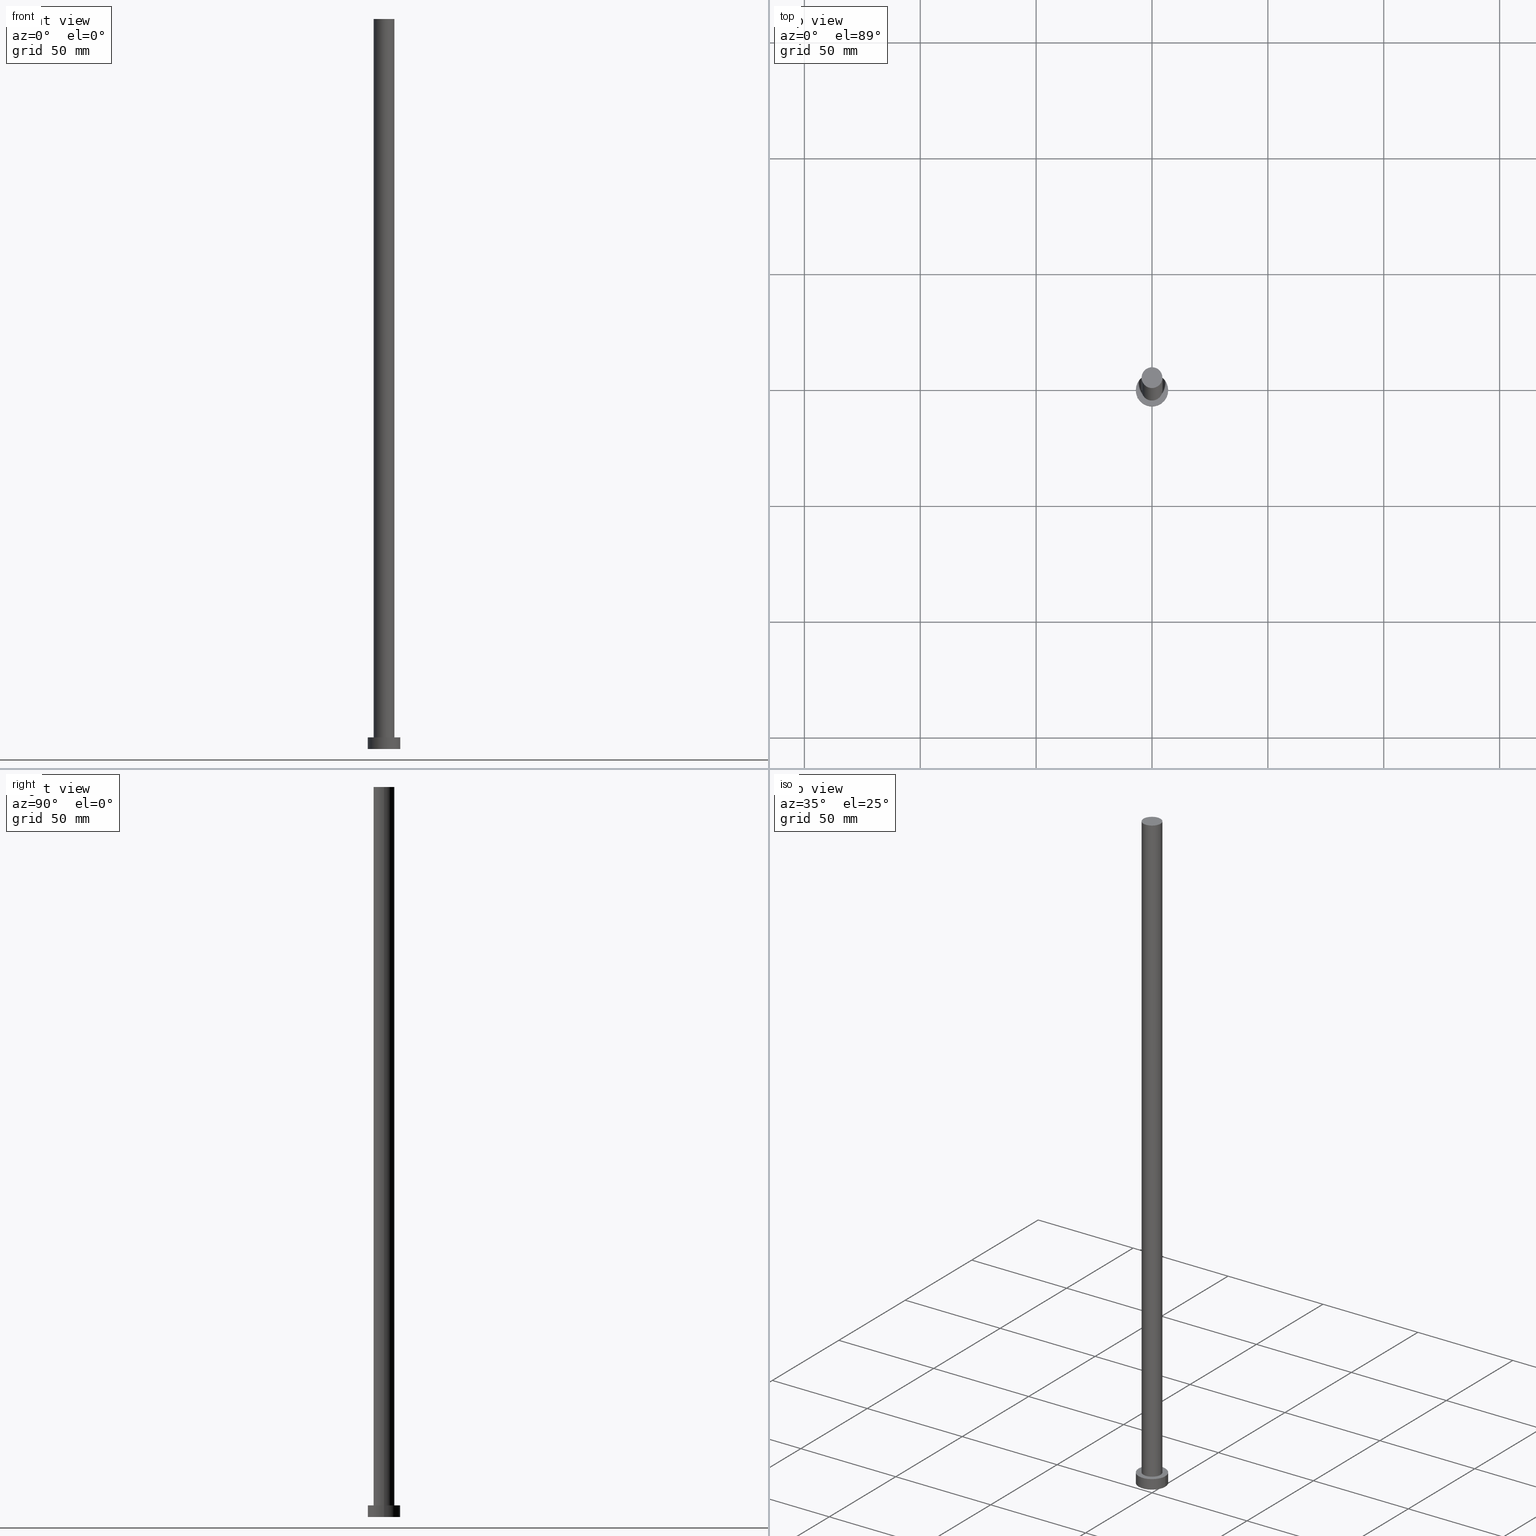
[diagram: canonical four-view strip — front | top / right | iso, engineering-drawing reading convention]
A machine part, canonical four-view strip (front | top / right | iso — engineering-drawing reading convention). The complete STEP part file that produces these views, byte-faithful:
ISO-10303-21;
HEADER;
FILE_DESCRIPTION (( 'STEP AP203' ),
    '1' );
FILE_NAME ('26ab.STEP',
    '2023-02-12T11:08:16',
    ( '' ),
    ( '' ),
    'SwSTEP 2.0',
    'SolidWorks 2019',
    '' );
FILE_SCHEMA (( 'CONFIG_CONTROL_DESIGN' ));
ENDSEC;

DATA;
#1 = AXIS2_PLACEMENT_3D ( 'NONE', #72, #56, #134 ) ;
#2 = EDGE_LOOP ( 'NONE', ( #219, #76 ) ) ;
#3 = EDGE_LOOP ( 'NONE', ( #8, #35 ) ) ;
#4 = VECTOR ( 'NONE', #164, 1000.000000000000000 ) ;
#5 = AXIS2_PLACEMENT_3D ( 'NONE', #135, #55, #80 ) ;
#6 = PERSON_AND_ORGANIZATION ( #190, #16 ) ;
#7 = APPROVAL_STATUS ( 'not_yet_approved' ) ;
#8 = ORIENTED_EDGE ( 'NONE', *, *, #213, .T. ) ;
#9 = VECTOR ( 'NONE', #189, 1000.000000000000000 ) ;
#10 = EDGE_CURVE ( 'NONE', #167, #238, #174, .T. ) ;
#11 = DIRECTION ( 'NONE',  ( 0.000000000000000000, 0.000000000000000000, 1.000000000000000000 ) ) ;
#12 = ADVANCED_FACE ( 'NONE', ( #252 ), #92, .T. ) ;
#13 = LINE ( 'NONE', #184, #204 ) ;
#14 = DIRECTION ( 'NONE',  ( -1.000000000000000000, 0.000000000000000000, 0.000000000000000000 ) ) ;
#15 = DIRECTION ( 'NONE',  ( 0.000000000000000000, 0.000000000000000000, 1.000000000000000000 ) ) ;
#16 = ORGANIZATION ( 'NEUR�EN�', 'NEUR�EN�', '' ) ;
#17 = DIRECTION ( 'NONE',  ( -1.000000000000000000, 0.000000000000000000, 0.000000000000000000 ) ) ;
#18 = CARTESIAN_POINT ( 'NONE',  ( -4.500000000000000000, 0.000000000000000000, 5.000000000000000000 ) ) ;
#19 = CIRCLE ( 'NONE', #244, 4.500000000000000000 ) ;
#20 = ORIENTED_EDGE ( 'NONE', *, *, #53, .T. ) ;
#21 = AXIS2_PLACEMENT_3D ( 'NONE', #136, #100, #17 ) ;
#22 = ORIENTED_EDGE ( 'NONE', *, *, #53, .F. ) ;
#23 = CARTESIAN_POINT ( 'NONE',  ( -7.000000000000000000, 0.000000000000000000, 5.000000000000000000 ) ) ;
#24 = PERSON_AND_ORGANIZATION ( #190, #16 ) ;
#25 = ORIENTED_EDGE ( 'NONE', *, *, #79, .F. ) ;
#26 = PERSON_AND_ORGANIZATION_ROLE ( 'classification_officer' ) ;
#27 = FACE_OUTER_BOUND ( 'NONE', #111, .T. ) ;
#28 = APPROVAL_DATE_TIME ( #203, #104 ) ;
#29 = EDGE_CURVE ( 'NONE', #216, #67, #105, .T. ) ;
#30 = APPROVAL_ROLE ( '' ) ;
#31 = CIRCLE ( 'NONE', #103, 4.500000000000000000 ) ;
#32 = CARTESIAN_POINT ( 'NONE',  ( -4.500000000000000000, 0.000000000000000000, 315.0000000000000000 ) ) ;
#33 = CC_DESIGN_PERSON_AND_ORGANIZATION_ASSIGNMENT ( #240, #161, ( #121 ) ) ;
#34 = LOCAL_TIME ( 12, 8, 16.00000000000000000, #246 ) ;
#35 = ORIENTED_EDGE ( 'NONE', *, *, #29, .T. ) ;
#36 = DIRECTION ( 'NONE',  ( 0.000000000000000000, 0.000000000000000000, 1.000000000000000000 ) ) ;
#37 = CARTESIAN_POINT ( 'NONE',  ( 0.000000000000000000, 0.000000000000000000, 5.000000000000000000 ) ) ;
#38 = EDGE_CURVE ( 'NONE', #119, #198, #59, .T. ) ;
#39 =( NAMED_UNIT ( * ) SI_UNIT ( $, .STERADIAN. ) SOLID_ANGLE_UNIT ( ) );
#40 = ORIENTED_EDGE ( 'NONE', *, *, #38, .F. ) ;
#41 = APPROVAL_PERSON_ORGANIZATION ( #6, #237, #30 ) ;
#42 = DIRECTION ( 'NONE',  ( 1.000000000000000000, 0.000000000000000000, -0.000000000000000000 ) ) ;
#43 = DATE_AND_TIME ( #176, #217 ) ;
#44 = APPROVAL ( #99, 'NEUR�EN�' ) ;
#45 = MANIFOLD_SOLID_BREP ( 'P�idat vysunut�m3', #129 ) ;
#46 = DIRECTION ( 'NONE',  ( -1.000000000000000000, 0.000000000000000000, 0.000000000000000000 ) ) ;
#47 = ADVANCED_FACE ( 'NONE', ( #109, #207 ), #152, .T. ) ;
#48 = COORDINATED_UNIVERSAL_TIME_OFFSET ( 1, 0, .AHEAD. ) ;
#49 = CARTESIAN_POINT ( 'NONE',  ( 0.000000000000000000, 0.000000000000000000, 315.0000000000000000 ) ) ;
#50 = DIRECTION ( 'NONE',  ( 1.000000000000000000, 0.000000000000000000, 0.000000000000000000 ) ) ;
#51 =( GEOMETRIC_REPRESENTATION_CONTEXT ( 3 ) GLOBAL_UNCERTAINTY_ASSIGNED_CONTEXT ( ( #133 ) ) GLOBAL_UNIT_ASSIGNED_CONTEXT ( ( #235, #118, #39 ) ) REPRESENTATION_CONTEXT ( 'NONE', 'WORKASPACE' ) );
#52 = FACE_OUTER_BOUND ( 'NONE', #166, .T. ) ;
#53 = EDGE_CURVE ( 'NONE', #216, #119, #13, .T. ) ;
#54 = DIRECTION ( 'NONE',  ( 0.000000000000000000, 0.000000000000000000, 1.000000000000000000 ) ) ;
#55 = DIRECTION ( 'NONE',  ( 0.000000000000000000, 0.000000000000000000, 1.000000000000000000 ) ) ;
#56 = DIRECTION ( 'NONE',  ( -0.000000000000000000, -0.000000000000000000, -1.000000000000000000 ) ) ;
#57 = PRODUCT_RELATED_PRODUCT_CATEGORY ( 'detail', '', ( #107 ) ) ;
#58 = DIRECTION ( 'NONE',  ( 0.000000000000000000, 0.000000000000000000, 1.000000000000000000 ) ) ;
#59 = CIRCLE ( 'NONE', #126, 4.500000000000000000 ) ;
#60 = ORIENTED_EDGE ( 'NONE', *, *, #165, .F. ) ;
#61 = PLANE ( 'NONE',  #162 ) ;
#62 = ORIENTED_EDGE ( 'NONE', *, *, #142, .T. ) ;
#63 = PERSON_AND_ORGANIZATION ( #190, #16 ) ;
#64 = ORIENTED_EDGE ( 'NONE', *, *, #110, .T. ) ;
#65 = APPROVAL_PERSON_ORGANIZATION ( #201, #104, #247 ) ;
#66 = CALENDAR_DATE ( 2023, 12, 2 ) ;
#67 = VERTEX_POINT ( 'NONE', #32 ) ;
#68 = CARTESIAN_POINT ( 'NONE',  ( 0.000000000000000000, 0.000000000000000000, 5.000000000000000000 ) ) ;
#69 = CARTESIAN_POINT ( 'NONE',  ( 0.000000000000000000, 0.000000000000000000, 5.000000000000000000 ) ) ;
#70 = CARTESIAN_POINT ( 'NONE',  ( 0.000000000000000000, 0.000000000000000000, 0.000000000000000000 ) ) ;
#71 = VERTEX_POINT ( 'NONE', #93 ) ;
#72 = CARTESIAN_POINT ( 'NONE',  ( 0.000000000000000000, 0.000000000000000000, 5.000000000000000000 ) ) ;
#73 = ADVANCED_FACE ( 'NONE', ( #52 ), #94, .T. ) ;
#74 = DIRECTION ( 'NONE',  ( 0.000000000000000000, 0.000000000000000000, 1.000000000000000000 ) ) ;
#75 = CARTESIAN_POINT ( 'NONE',  ( -7.000000000000000000, 0.000000000000000000, 5.000000000000000000 ) ) ;
#76 = ORIENTED_EDGE ( 'NONE', *, *, #110, .F. ) ;
#77 = LINE ( 'NONE', #218, #239 ) ;
#78 = EDGE_LOOP ( 'NONE', ( #117, #20, #149, #25 ) ) ;
#79 = EDGE_CURVE ( 'NONE', #67, #198, #209, .T. ) ;
#80 = DIRECTION ( 'NONE',  ( 1.000000000000000000, 0.000000000000000000, 0.000000000000000000 ) ) ;
#81 = SECURITY_CLASSIFICATION_LEVEL ( 'unclassified' ) ;
#82 = PERSON_AND_ORGANIZATION_ROLE ( 'creator' ) ;
#83 = PRODUCT_DEFINITION_SHAPE ( 'NONE', 'NONE',  #121 ) ;
#84 = DATE_AND_TIME ( #125, #222 ) ;
#85 = LOCAL_TIME ( 12, 8, 16.00000000000000000, #146 ) ;
#86 = DATE_AND_TIME ( #144, #170 ) ;
#87 = AXIS2_PLACEMENT_3D ( 'NONE', #70, #54, #124 ) ;
#88 = CARTESIAN_POINT ( 'NONE',  ( 0.000000000000000000, 0.000000000000000000, 315.0000000000000000 ) ) ;
#89 = APPROVAL_PERSON_ORGANIZATION ( #193, #44, #172 ) ;
#90 = DIRECTION ( 'NONE',  ( 1.000000000000000000, 0.000000000000000000, 0.000000000000000000 ) ) ;
#91 = CC_DESIGN_DATE_AND_TIME_ASSIGNMENT ( #86, #123, ( #120 ) ) ;
#92 = CYLINDRICAL_SURFACE ( 'NONE', #196, 4.500000000000000000 ) ;
#93 = CARTESIAN_POINT ( 'NONE',  ( -7.000000000000000000, 0.000000000000000000, 0.000000000000000000 ) ) ;
#94 = CYLINDRICAL_SURFACE ( 'NONE', #148, 4.500000000000000000 ) ;
#95 = DIRECTION ( 'NONE',  ( -0.000000000000000000, -0.000000000000000000, -1.000000000000000000 ) ) ;
#96 = CARTESIAN_POINT ( 'NONE',  ( 0.000000000000000000, 0.000000000000000000, 315.0000000000000000 ) ) ;
#97 = DIRECTION ( 'NONE',  ( 1.000000000000000000, 0.000000000000000000, 0.000000000000000000 ) ) ;
#98 = VERTEX_POINT ( 'NONE', #183 ) ;
#99 = APPROVAL_STATUS ( 'not_yet_approved' ) ;
#100 = DIRECTION ( 'NONE',  ( -0.000000000000000000, -0.000000000000000000, -1.000000000000000000 ) ) ;
#101 = CIRCLE ( 'NONE', #87, 7.000000000000000000 ) ;
#102 = PERSON_AND_ORGANIZATION_ROLE ( 'design_supplier' ) ;
#103 = AXIS2_PLACEMENT_3D ( 'NONE', #212, #211, #215 ) ;
#104 = APPROVAL ( #178, 'NEUR�EN�' ) ;
#105 = CIRCLE ( 'NONE', #186, 4.500000000000000000 ) ;
#106 = CYLINDRICAL_SURFACE ( 'NONE', #1, 7.000000000000000000 ) ;
#107 = PRODUCT ( '26ab', '26ab', '', ( #155 ) ) ;
#108 = PERSON_AND_ORGANIZATION ( #190, #16 ) ;
#109 = FACE_BOUND ( 'NONE', #251, .T. ) ;
#110 = EDGE_CURVE ( 'NONE', #98, #71, #101, .T. ) ;
#111 = EDGE_LOOP ( 'NONE', ( #175, #173, #245, #177 ) ) ;
#112 = DIRECTION ( 'NONE',  ( 1.000000000000000000, 0.000000000000000000, 0.000000000000000000 ) ) ;
#113 = ORIENTED_EDGE ( 'NONE', *, *, #165, .T. ) ;
#114 = CARTESIAN_POINT ( 'NONE',  ( 4.500000000000000000, 5.510910596163088569E-16, 315.0000000000000000 ) ) ;
#115 = CARTESIAN_POINT ( 'NONE',  ( 0.000000000000000000, 0.000000000000000000, 0.000000000000000000 ) ) ;
#116 = APPLICATION_PROTOCOL_DEFINITION ( 'international standard', 'config_control_design', 1994, #128 ) ;
#117 = ORIENTED_EDGE ( 'NONE', *, *, #29, .F. ) ;
#118 =( NAMED_UNIT ( * ) PLANE_ANGLE_UNIT ( ) SI_UNIT ( $, .RADIAN. ) );
#119 = VERTEX_POINT ( 'NONE', #132 ) ;
#120 = SECURITY_CLASSIFICATION ( '', '', #81 ) ;
#121 = PRODUCT_DEFINITION ( 'NEZN�M�', '', #192, #122 ) ;
#122 = DESIGN_CONTEXT ( 'detailed design', #128, 'design' ) ;
#123 = DATE_TIME_ROLE ( 'classification_date' ) ;
#124 = DIRECTION ( 'NONE',  ( 1.000000000000000000, 0.000000000000000000, 0.000000000000000000 ) ) ;
#125 = CALENDAR_DATE ( 2023, 12, 2 ) ;
#126 = AXIS2_PLACEMENT_3D ( 'NONE', #69, #150, #112 ) ;
#127 = CC_DESIGN_PERSON_AND_ORGANIZATION_ASSIGNMENT ( #63, #26, ( #120 ) ) ;
#128 = APPLICATION_CONTEXT ( 'configuration controlled 3d designs of mechanical parts and assemblies' ) ;
#129 = CLOSED_SHELL ( 'NONE', ( #12, #228, #179, #47, #205, #73, #248 ) ) ;
#130 = EDGE_LOOP ( 'NONE', ( #62, #171 ) ) ;
#131 = DIRECTION ( 'NONE',  ( -0.000000000000000000, -0.000000000000000000, -1.000000000000000000 ) ) ;
#132 = CARTESIAN_POINT ( 'NONE',  ( 4.500000000000000000, 5.510910596163088569E-16, 5.000000000000000000 ) ) ;
#133 = UNCERTAINTY_MEASURE_WITH_UNIT (LENGTH_MEASURE( 1.000000000000000082E-05 ), #235, 'distance_accuracy_value', 'NONE');
#134 = DIRECTION ( 'NONE',  ( -1.000000000000000000, 0.000000000000000000, 0.000000000000000000 ) ) ;
#135 = CARTESIAN_POINT ( 'NONE',  ( 0.000000000000000000, 0.000000000000000000, 0.000000000000000000 ) ) ;
#136 = CARTESIAN_POINT ( 'NONE',  ( 0.000000000000000000, 0.000000000000000000, 5.000000000000000000 ) ) ;
#137 = PERSON_AND_ORGANIZATION_ROLE ( 'design_owner' ) ;
#138 = FACE_OUTER_BOUND ( 'NONE', #143, .T. ) ;
#139 = CIRCLE ( 'NONE', #5, 7.000000000000000000 ) ;
#140 = COORDINATED_UNIVERSAL_TIME_OFFSET ( 1, 0, .AHEAD. ) ;
#141 = APPROVAL_DATE_TIME ( #43, #44 ) ;
#142 = EDGE_CURVE ( 'NONE', #238, #167, #233, .T. ) ;
#143 = EDGE_LOOP ( 'NONE', ( #221, #160, #64, #241 ) ) ;
#144 = CALENDAR_DATE ( 2023, 12, 2 ) ;
#145 = CC_DESIGN_APPROVAL ( #237, ( #192 ) ) ;
#146 = COORDINATED_UNIVERSAL_TIME_OFFSET ( 1, 0, .AHEAD. ) ;
#147 = DATE_AND_TIME ( #66, #34 ) ;
#148 = AXIS2_PLACEMENT_3D ( 'NONE', #88, #131, #46 ) ;
#149 = ORIENTED_EDGE ( 'NONE', *, *, #38, .T. ) ;
#150 = DIRECTION ( 'NONE',  ( 0.000000000000000000, 0.000000000000000000, 1.000000000000000000 ) ) ;
#151 = CC_DESIGN_PERSON_AND_ORGANIZATION_ASSIGNMENT ( #108, #82, ( #192 ) ) ;
#152 = PLANE ( 'NONE',  #225 ) ;
#153 = ORIENTED_EDGE ( 'NONE', *, *, #79, .T. ) ;
#154 = DIRECTION ( 'NONE',  ( 0.000000000000000000, 0.000000000000000000, 1.000000000000000000 ) ) ;
#155 = MECHANICAL_CONTEXT ( 'NONE', #249, 'mechanical' ) ;
#156 = PERSON_AND_ORGANIZATION ( #190, #16 ) ;
#157 = CARTESIAN_POINT ( 'NONE',  ( 0.000000000000000000, 0.000000000000000000, 0.000000000000000000 ) ) ;
#158 = CC_DESIGN_SECURITY_CLASSIFICATION ( #120, ( #192 ) ) ;
#159 = ADVANCED_BREP_SHAPE_REPRESENTATION ( '26ab', ( #45, #200 ), #51 ) ;
#160 = ORIENTED_EDGE ( 'NONE', *, *, #250, .T. ) ;
#161 = PERSON_AND_ORGANIZATION_ROLE ( 'creator' ) ;
#162 = AXIS2_PLACEMENT_3D ( 'NONE', #96, #232, #42 ) ;
#163 = COORDINATED_UNIVERSAL_TIME_OFFSET ( 1, 0, .AHEAD. ) ;
#164 = DIRECTION ( 'NONE',  ( -0.000000000000000000, -0.000000000000000000, -1.000000000000000000 ) ) ;
#165 = EDGE_CURVE ( 'NONE', #198, #119, #19, .T. ) ;
#166 = EDGE_LOOP ( 'NONE', ( #22, #227, #153, #113 ) ) ;
#167 = VERTEX_POINT ( 'NONE', #202 ) ;
#168 = DIRECTION ( 'NONE',  ( 1.000000000000000000, 0.000000000000000000, 0.000000000000000000 ) ) ;
#169 = FACE_OUTER_BOUND ( 'NONE', #2, .T. ) ;
#170 = LOCAL_TIME ( 12, 8, 16.00000000000000000, #163 ) ;
#171 = ORIENTED_EDGE ( 'NONE', *, *, #10, .T. ) ;
#172 = APPROVAL_ROLE ( '' ) ;
#173 = ORIENTED_EDGE ( 'NONE', *, *, #142, .F. ) ;
#174 = CIRCLE ( 'NONE', #220, 7.000000000000000000 ) ;
#175 = ORIENTED_EDGE ( 'NONE', *, *, #250, .F. ) ;
#176 = CALENDAR_DATE ( 2023, 12, 2 ) ;
#177 = ORIENTED_EDGE ( 'NONE', *, *, #223, .T. ) ;
#178 = APPROVAL_STATUS ( 'not_yet_approved' ) ;
#179 = ADVANCED_FACE ( 'NONE', ( #27 ), #106, .T. ) ;
#180 = DIRECTION ( 'NONE',  ( 0.000000000000000000, 0.000000000000000000, 1.000000000000000000 ) ) ;
#181 = SHAPE_DEFINITION_REPRESENTATION ( #83, #159 ) ;
#182 = CC_DESIGN_APPROVAL ( #104, ( #120 ) ) ;
#183 = CARTESIAN_POINT ( 'NONE',  ( 7.000000000000000000, 8.572527594031473190E-16, 0.000000000000000000 ) ) ;
#184 = CARTESIAN_POINT ( 'NONE',  ( 4.500000000000000000, 5.510910596163088569E-16, 315.0000000000000000 ) ) ;
#185 = DIRECTION ( 'NONE',  ( 1.000000000000000000, 0.000000000000000000, -0.000000000000000000 ) ) ;
#186 = AXIS2_PLACEMENT_3D ( 'NONE', #49, #180, #50 ) ;
#187 = DIRECTION ( 'NONE',  ( -0.000000000000000000, -0.000000000000000000, -1.000000000000000000 ) ) ;
#188 = LINE ( 'NONE', #23, #9 ) ;
#189 = DIRECTION ( 'NONE',  ( -0.000000000000000000, -0.000000000000000000, -1.000000000000000000 ) ) ;
#190 = PERSON ( 'NEUR�EN�', 'NEUR�EN�', 'NEUR�EN�', ('NEUR�EN�'), ('NEUR�EN�'), ('NEUR�EN�') ) ;
#191 = CC_DESIGN_PERSON_AND_ORGANIZATION_ASSIGNMENT ( #24, #102, ( #192 ) ) ;
#192 = PRODUCT_DEFINITION_FORMATION_WITH_SPECIFIED_SOURCE ( 'LIBOVOLN�', '', #107, .NOT_KNOWN. ) ;
#193 = PERSON_AND_ORGANIZATION ( #190, #16 ) ;
#194 = FACE_OUTER_BOUND ( 'NONE', #3, .T. ) ;
#195 = CC_DESIGN_PERSON_AND_ORGANIZATION_ASSIGNMENT ( #156, #137, ( #107 ) ) ;
#196 = AXIS2_PLACEMENT_3D ( 'NONE', #231, #226, #14 ) ;
#197 = DATE_TIME_ROLE ( 'creation_date' ) ;
#198 = VERTEX_POINT ( 'NONE', #18 ) ;
#199 = APPROVAL_DATE_TIME ( #147, #237 ) ;
#200 = AXIS2_PLACEMENT_3D ( 'NONE', #115, #58, #97 ) ;
#201 = PERSON_AND_ORGANIZATION ( #190, #16 ) ;
#202 = CARTESIAN_POINT ( 'NONE',  ( 7.000000000000000000, 8.572527594031473190E-16, 5.000000000000000000 ) ) ;
#203 = DATE_AND_TIME ( #224, #85 ) ;
#204 = VECTOR ( 'NONE', #187, 1000.000000000000000 ) ;
#205 = ADVANCED_FACE ( 'NONE', ( #169 ), #255, .F. ) ;
#206 = CARTESIAN_POINT ( 'NONE',  ( 0.000000000000000000, 0.000000000000000000, 5.000000000000000000 ) ) ;
#207 = FACE_OUTER_BOUND ( 'NONE', #130, .T. ) ;
#208 = EDGE_CURVE ( 'NONE', #238, #71, #188, .T. ) ;
#209 = LINE ( 'NONE', #253, #4 ) ;
#210 = CARTESIAN_POINT ( 'NONE',  ( 0.000000000000000000, 0.000000000000000000, 5.000000000000000000 ) ) ;
#211 = DIRECTION ( 'NONE',  ( 0.000000000000000000, 0.000000000000000000, 1.000000000000000000 ) ) ;
#212 = CARTESIAN_POINT ( 'NONE',  ( 0.000000000000000000, 0.000000000000000000, 315.0000000000000000 ) ) ;
#213 = EDGE_CURVE ( 'NONE', #67, #216, #31, .T. ) ;
#214 = DIRECTION ( 'NONE',  ( 1.000000000000000000, 0.000000000000000000, -0.000000000000000000 ) ) ;
#215 = DIRECTION ( 'NONE',  ( 1.000000000000000000, 0.000000000000000000, 0.000000000000000000 ) ) ;
#216 = VERTEX_POINT ( 'NONE', #114 ) ;
#217 = LOCAL_TIME ( 12, 8, 16.00000000000000000, #140 ) ;
#218 = CARTESIAN_POINT ( 'NONE',  ( 7.000000000000000000, 8.572527594031473190E-16, 5.000000000000000000 ) ) ;
#219 = ORIENTED_EDGE ( 'NONE', *, *, #223, .F. ) ;
#220 = AXIS2_PLACEMENT_3D ( 'NONE', #68, #36, #229 ) ;
#221 = ORIENTED_EDGE ( 'NONE', *, *, #10, .F. ) ;
#222 = LOCAL_TIME ( 12, 8, 16.00000000000000000, #48 ) ;
#223 = EDGE_CURVE ( 'NONE', #71, #98, #139, .T. ) ;
#224 = CALENDAR_DATE ( 2023, 12, 2 ) ;
#225 = AXIS2_PLACEMENT_3D ( 'NONE', #206, #154, #185 ) ;
#226 = DIRECTION ( 'NONE',  ( -0.000000000000000000, -0.000000000000000000, -1.000000000000000000 ) ) ;
#227 = ORIENTED_EDGE ( 'NONE', *, *, #213, .F. ) ;
#228 = ADVANCED_FACE ( 'NONE', ( #138 ), #236, .T. ) ;
#229 = DIRECTION ( 'NONE',  ( 1.000000000000000000, 0.000000000000000000, 0.000000000000000000 ) ) ;
#230 = AXIS2_PLACEMENT_3D ( 'NONE', #157, #74, #214 ) ;
#231 = CARTESIAN_POINT ( 'NONE',  ( 0.000000000000000000, 0.000000000000000000, 315.0000000000000000 ) ) ;
#232 = DIRECTION ( 'NONE',  ( 0.000000000000000000, 0.000000000000000000, 1.000000000000000000 ) ) ;
#233 = CIRCLE ( 'NONE', #242, 7.000000000000000000 ) ;
#234 = CC_DESIGN_APPROVAL ( #44, ( #121 ) ) ;
#235 =( LENGTH_UNIT ( ) NAMED_UNIT ( * ) SI_UNIT ( .MILLI., .METRE. ) );
#236 = CYLINDRICAL_SURFACE ( 'NONE', #21, 7.000000000000000000 ) ;
#237 = APPROVAL ( #7, 'NEUR�EN�' ) ;
#238 = VERTEX_POINT ( 'NONE', #75 ) ;
#239 = VECTOR ( 'NONE', #95, 1000.000000000000000 ) ;
#240 = PERSON_AND_ORGANIZATION ( #190, #16 ) ;
#241 = ORIENTED_EDGE ( 'NONE', *, *, #208, .F. ) ;
#242 = AXIS2_PLACEMENT_3D ( 'NONE', #210, #11, #90 ) ;
#243 = CC_DESIGN_DATE_AND_TIME_ASSIGNMENT ( #84, #197, ( #121 ) ) ;
#244 = AXIS2_PLACEMENT_3D ( 'NONE', #37, #15, #168 ) ;
#245 = ORIENTED_EDGE ( 'NONE', *, *, #208, .T. ) ;
#246 = COORDINATED_UNIVERSAL_TIME_OFFSET ( 1, 0, .AHEAD. ) ;
#247 = APPROVAL_ROLE ( '' ) ;
#248 = ADVANCED_FACE ( 'NONE', ( #194 ), #61, .T. ) ;
#249 = APPLICATION_CONTEXT ( 'configuration controlled 3d designs of mechanical parts and assemblies' ) ;
#250 = EDGE_CURVE ( 'NONE', #167, #98, #77, .T. ) ;
#251 = EDGE_LOOP ( 'NONE', ( #60, #40 ) ) ;
#252 = FACE_OUTER_BOUND ( 'NONE', #78, .T. ) ;
#253 = CARTESIAN_POINT ( 'NONE',  ( -4.500000000000000000, 0.000000000000000000, 315.0000000000000000 ) ) ;
#254 = APPLICATION_PROTOCOL_DEFINITION ( 'international standard', 'config_control_design', 1994, #249 ) ;
#255 = PLANE ( 'NONE',  #230 ) ;
ENDSEC;
END-ISO-10303-21;
